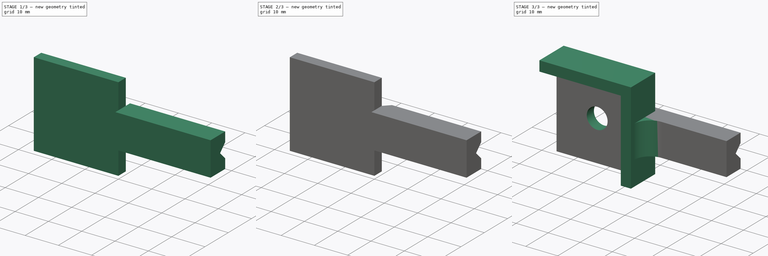
[diagram: build sequence overview — one tinted view per stage of 3, left to right]
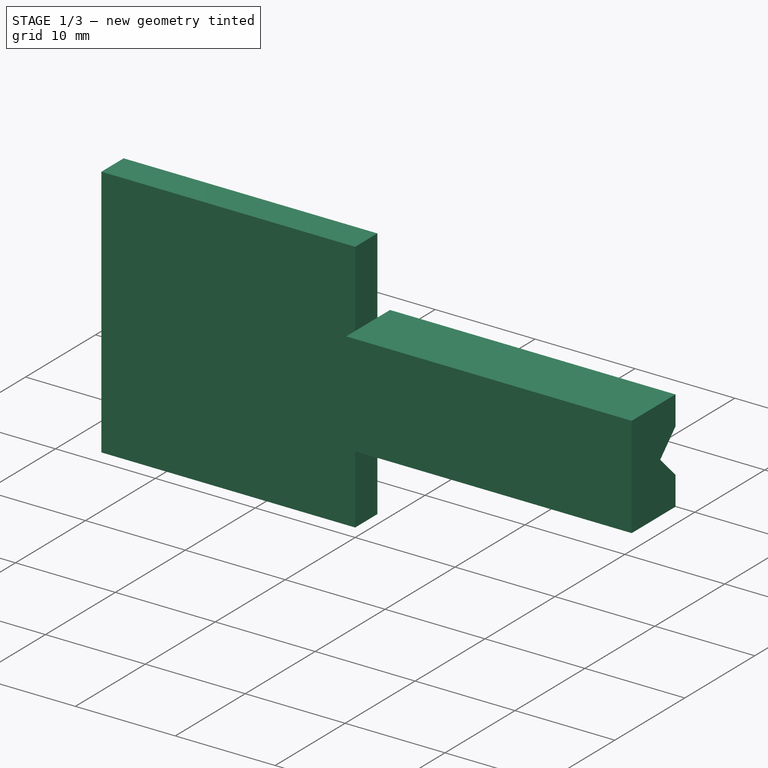
[diagram: stage 1 of 3 — iso view after this stage's code; geometry added in this stage tinted green]
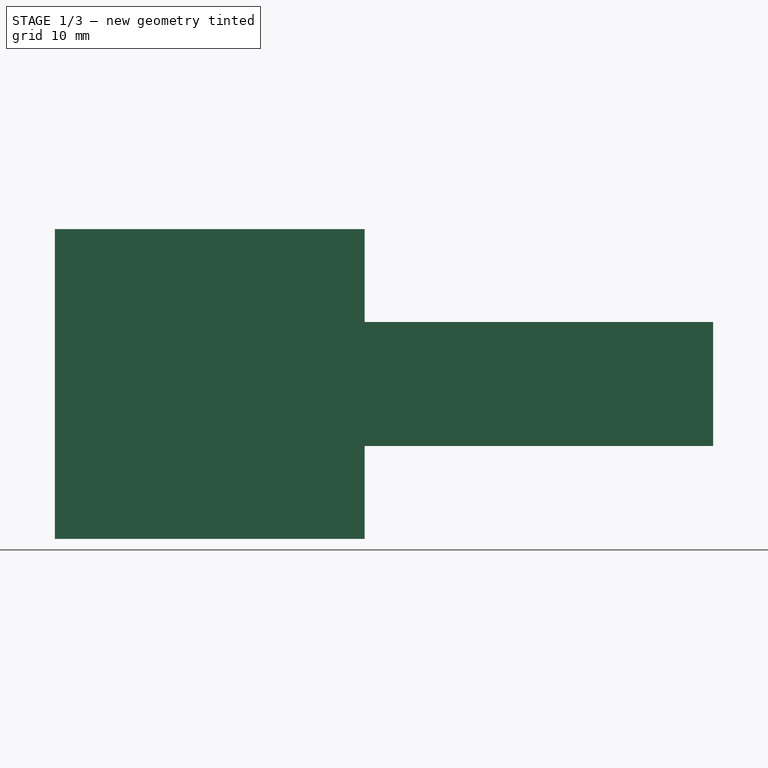
[diagram: stage 1 of 3 — front view after this stage's code; geometry added in this stage tinted green]
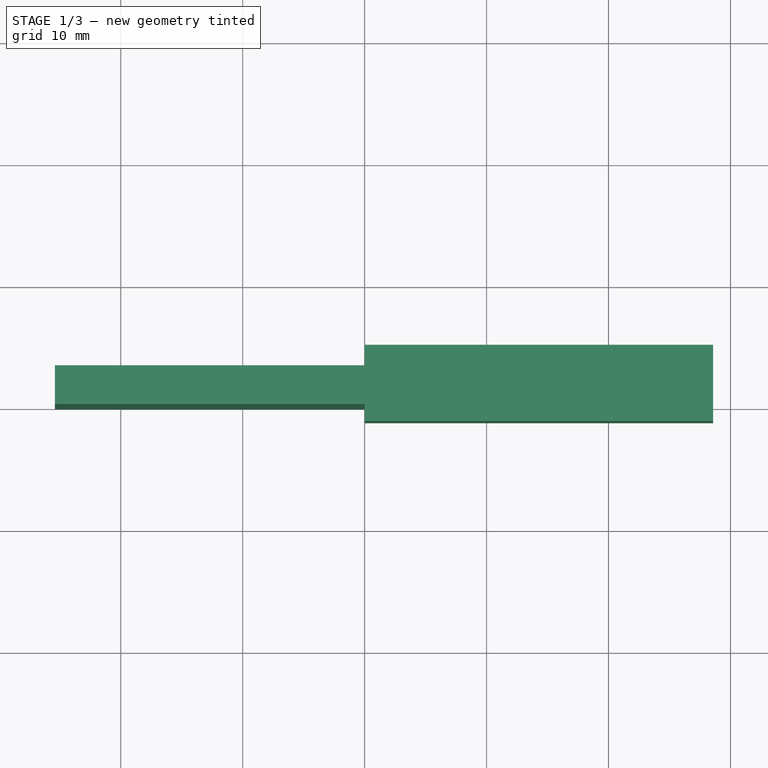
[diagram: stage 1 of 3 — top view after this stage's code; geometry added in this stage tinted green]
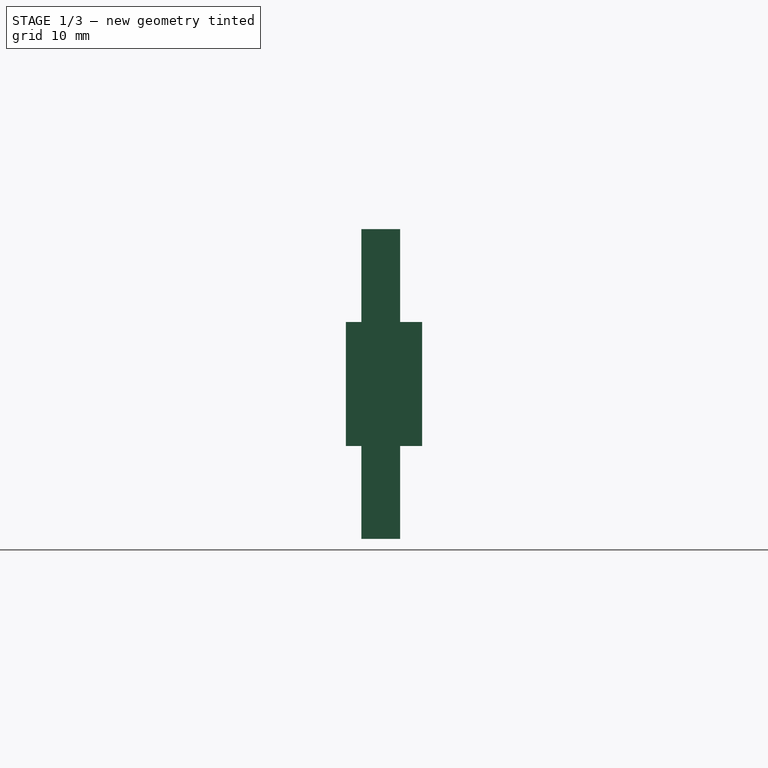
[diagram: stage 1 of 3 — right view after this stage's code; geometry added in this stage tinted green]
FCSTD DOCUMENT  (FreeCAD 0.18R16110 (Git))
Label: Lick spout holder v5 updated
License: All rights reserved
LicenseURL: http://en.wikipedia.org/wiki/All_rights_reserved
objects: Sketcher::SketchObject×6, PartDesign::Pad×3, PartDesign::Pocket×3, PartDesign::Chamfer×1, PartDesign::Fillet×1, PartDesign::Body×1
note: 21 computed .brp shape members not serialized (recipe doc carries the construction recipe); baked Part::Feature solids carry a one-line shape summary decoded from their .brp

FEATURE [Sketcher::SketchObject] Sketch  label="Mounting platform"
  MapMode = 5
  Support = -> [XY_Plane]
  sketch-geometry (4):
    g0: LineSegment StartX=-25.4 StartY=3.175 StartZ=0 EndX=0 EndY=3.175 EndZ=0
    g1: LineSegment StartX=0 StartY=3.175 StartZ=0 EndX=0 EndY=0 EndZ=0
    g2: LineSegment StartX=0 StartY=0 StartZ=0 EndX=-25.4 EndY=0 EndZ=0
    g3: LineSegment StartX=-25.4 StartY=0 StartZ=0 EndX=-25.4 EndY=3.175 EndZ=0
  constraints (11):
    c: Coincident(g0,g1)
    c: Coincident(g1,g2)
    c: Coincident(g2,g3)
    c: Coincident(g3,g0)
    c: Horizontal(g0)
    c: Horizontal(g2)
    c: Vertical(g1)
    c: Vertical(g3)
    c: DistanceX(g2,g2) = 25.4
    c: DistanceY(g1,g1) = 3.175
    c: Coincident(g-1,g1)
FEATURE [PartDesign::Pad] Pad
  Length = 25.4
  Length2 = 99.9998
  Profile = -> Sketch
  Type = 0
FEATURE [Sketcher::SketchObject] Sketch001  label="Spout support platform"
  MapMode = 5
  Placement = pos=(0,3.175,0) rot=(0,0.707107,0.707107;3.14159rad)
  Support = -> [Pad]
  expr: Constraints[11] = 1.5in - 0.375in
  expr: Constraints[8] = (1in - 0.4in) / 2
  sketch-geometry (4):
    g0: LineSegment StartX=-28.575 StartY=17.78 StartZ=0 EndX=0 EndY=17.78 EndZ=0
    g1: LineSegment StartX=0 StartY=17.78 StartZ=0 EndX=0 EndY=7.62 EndZ=0
    g2: LineSegment StartX=0 StartY=7.62 StartZ=0 EndX=-28.575 EndY=7.62 EndZ=0
    g3: LineSegment StartX=-28.575 StartY=7.62 StartZ=0 EndX=-28.575 EndY=17.78 EndZ=0
  constraints (12):
    c: Coincident(g0,g1)
    c: Coincident(g1,g2)
    c: Coincident(g2,g3)
    c: Coincident(g3,g0)
    c: Horizontal(g0)
    c: Horizontal(g2)
    c: Vertical(g1)
    c: Vertical(g3)
    c: DistanceY(g-1,g1) = 7.62
    c: DistanceY(g1,g1) = 10.16
    c: DistanceX(g1,g-1) = 0
    c: DistanceX(g2,g2) = 28.575
FEATURE [PartDesign::Pad] Pad001
  BaseFeature = -> Pad
  Length = 1.81
  Length2 = 4.445
  Profile = -> Sketch001
  Type = 4
  expr: Length = 1.81mm
FEATURE [Sketcher::SketchObject] Sketch002  label="Spout groove"
  MapMode = 5
  Placement = pos=(28.575,0,0) rot=(0.57735,0.57735,0.57735;2.0944rad)
  Support = -> [Pad001]
  expr: Constraints[7] = 0.125" + 1.81mm / 2
  expr: Constraints[3] = 1.81mm / 2
  sketch-geometry (4):
    g0: LineSegment StartX=9.15014 StartY=19.05 StartZ=0 EndX=2.80014 EndY=12.7 EndZ=0
    g1: LineSegment StartX=2.80014 StartY=12.7 StartZ=0 EndX=9.15014 EndY=6.35 EndZ=0
    g2: LineSegment StartX=9.15014 StartY=6.35 StartZ=0 EndX=9.15014 EndY=19.05 EndZ=0
    g3: Circle [constr] CenterX=4.08 CenterY=12.7 CenterZ=0 NormalX=0 NormalY=0 NormalZ=1 AngleXU=0 Radius=0.905
  constraints (12):
    c: Coincident(g0,g2)
    c: Coincident(g0,g1)
    c: Coincident(g1,g2)
    c: Radius(g3) = 0.905
    c: Tangent(g1,g3)
    c: Tangent(g3,g0)
    c: DistanceX(g1,g0) = 0
    c: DistanceX(g-1,g3) = 4.08
    c: DistanceY(g-1,g0) = 12.7
    c: Equal(g0,g1)
    c: Angle(g1,g0) = 1.5708
    c: DistanceX(g0,g1) = 6.35
FEATURE [PartDesign::Pocket] Pocket
  BaseFeature = -> Pad001
  Length = 9.525
  Length2 = 99.9998
  Profile = -> Sketch002
  Type = 0
  expr: Length = 3in / 8
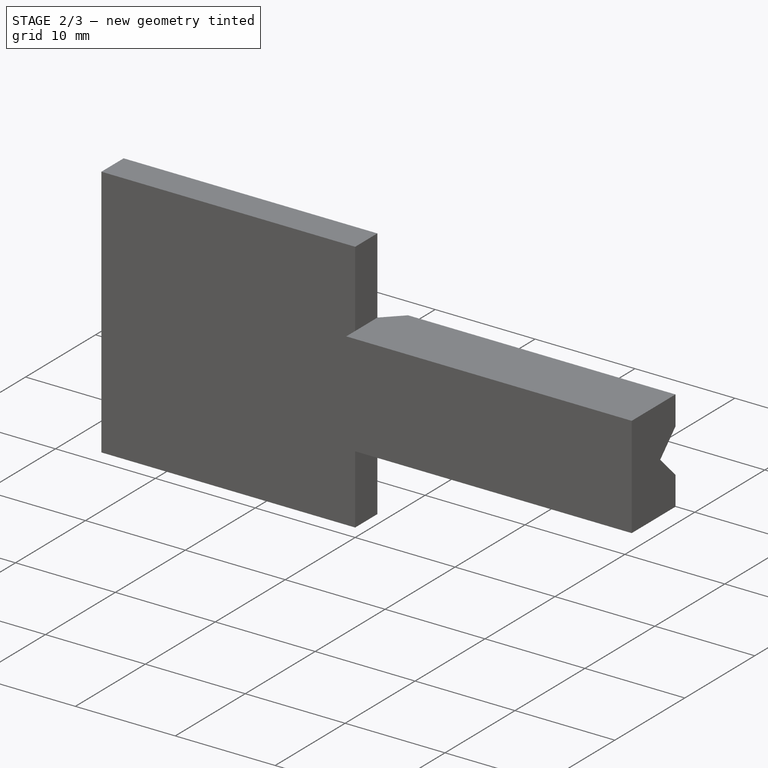
[diagram: stage 2 of 3 — iso view after this stage's code; geometry added in this stage tinted green]
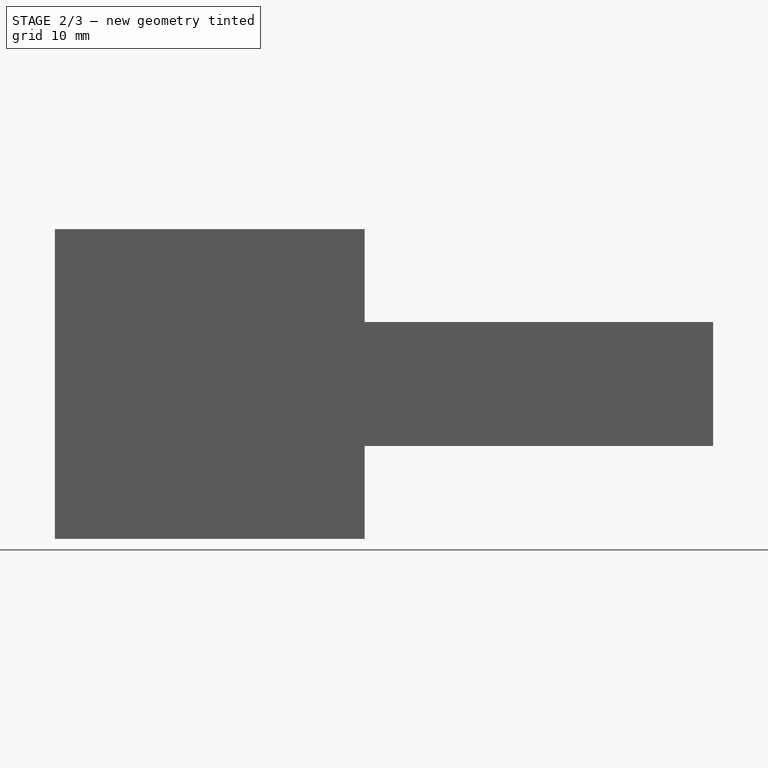
[diagram: stage 2 of 3 — front view after this stage's code; geometry added in this stage tinted green]
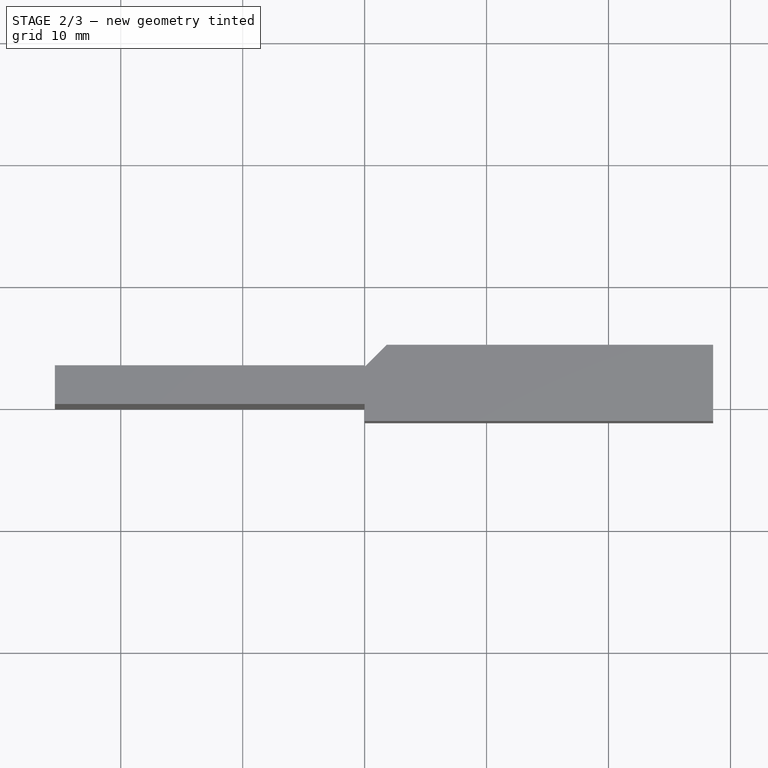
[diagram: stage 2 of 3 — top view after this stage's code; geometry added in this stage tinted green]
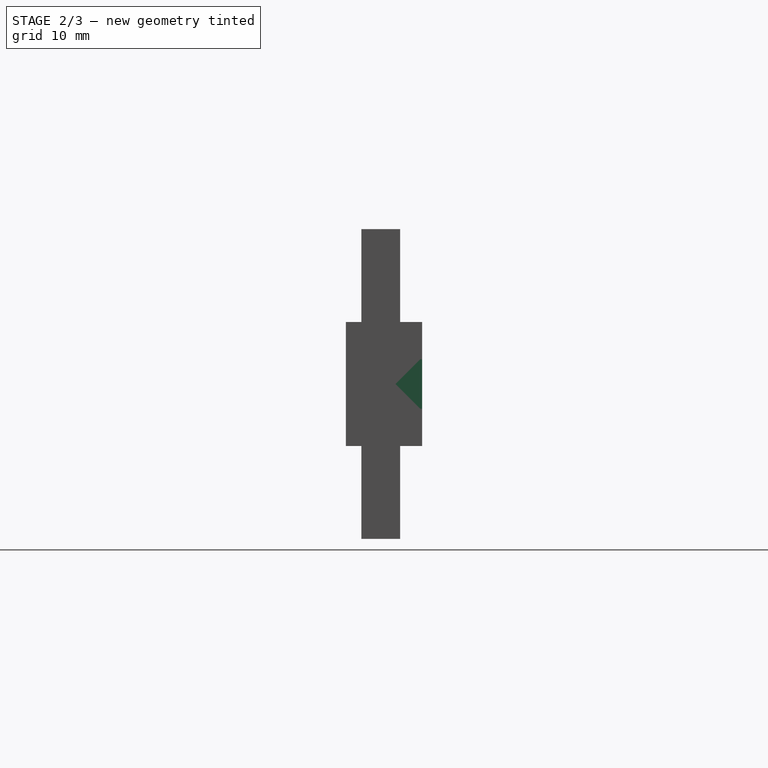
[diagram: stage 2 of 3 — right view after this stage's code; geometry added in this stage tinted green]
FEATURE [Sketcher::SketchObject] Sketch003  label="Tube groove"
  MapMode = 5
  Placement = pos=(19.05,0,0) rot=(0.57735,0.57735,0.57735;2.0944rad)
  Support = -> [Pocket]
  expr: Constraints[12] = 1.81mm / 2
  expr: Constraints[4] = 0.125" + 1.81mm / 2
  expr: Constraints[2] = 0.16" / 2
  sketch-geometry (4):
    g0: ArcOfCircle CenterX=4.08 CenterY=12.7 CenterZ=0 NormalX=0 NormalY=0 NormalZ=1 AngleXU=0 Radius=2.032 StartAngle=1.5708 EndAngle=4.71239
    g1: LineSegment StartX=4.08 StartY=14.732 StartZ=0 EndX=4.985 EndY=14.732 EndZ=0
    g2: LineSegment StartX=4.985 StartY=14.732 StartZ=0 EndX=4.985 EndY=10.668 EndZ=0
    g3: LineSegment StartX=4.985 StartY=10.668 StartZ=0 EndX=4.08 EndY=10.668 EndZ=0
  constraints (13):
    c: DistanceX(g0,g0) = 0
    c: DistanceX(g0,g0) = 0
    c: Radius(g0) = 2.032
    c: DistanceY(g-1,g0) = 12.7
    c: DistanceX(g-1,g0) = 4.08
    c: Coincident(g0,g1)
    c: Coincident(g1,g2)
    c: Coincident(g2,g3)
    c: Coincident(g0,g3)
    c: Horizontal(g3)
    c: Horizontal(g1)
    c: Vertical(g2)
    c: Distance(g1) = 0.905
FEATURE [PartDesign::Pocket] Pocket001
  BaseFeature = -> Pocket
  Length = 12.7
  Length2 = 99.9998
  Profile = -> Sketch003
  Type = 0
FEATURE [PartDesign::Chamfer] Chamfer
  Base = -> Pocket001 [Edge14]
  BaseFeature = -> Pocket001
  Size = 1.8034
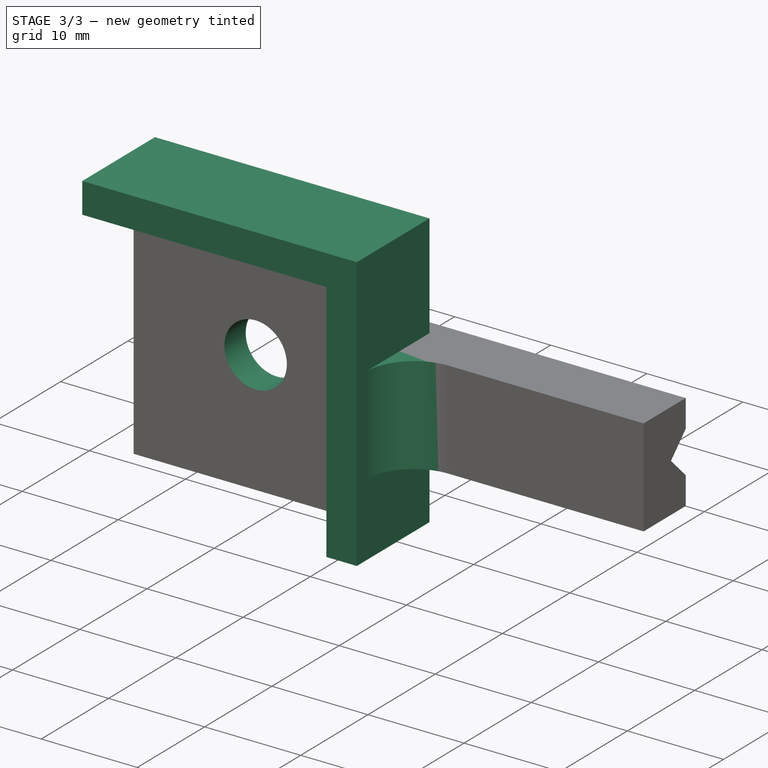
[diagram: stage 3 of 3 — iso view after this stage's code; geometry added in this stage tinted green]
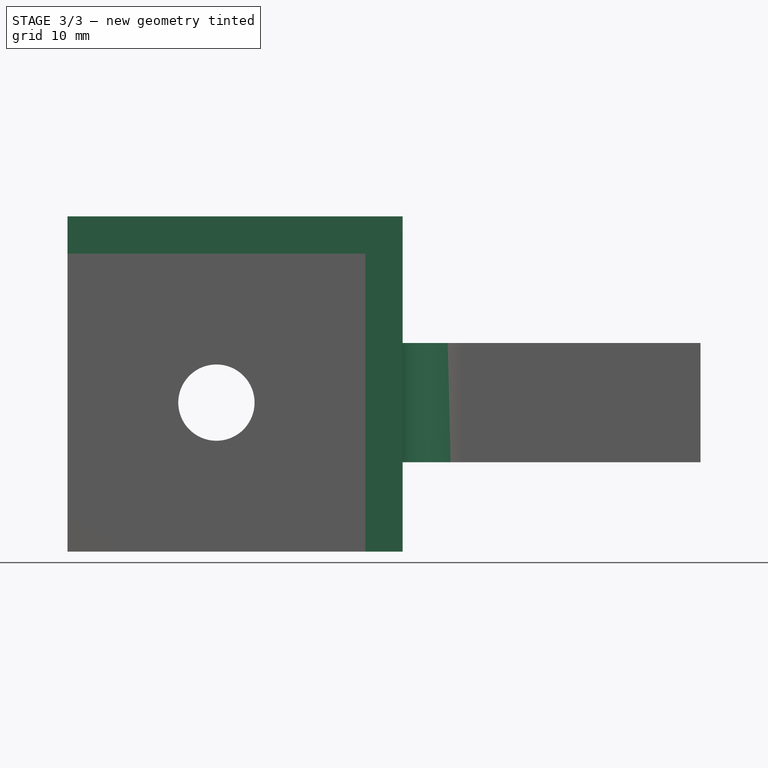
[diagram: stage 3 of 3 — front view after this stage's code; geometry added in this stage tinted green]
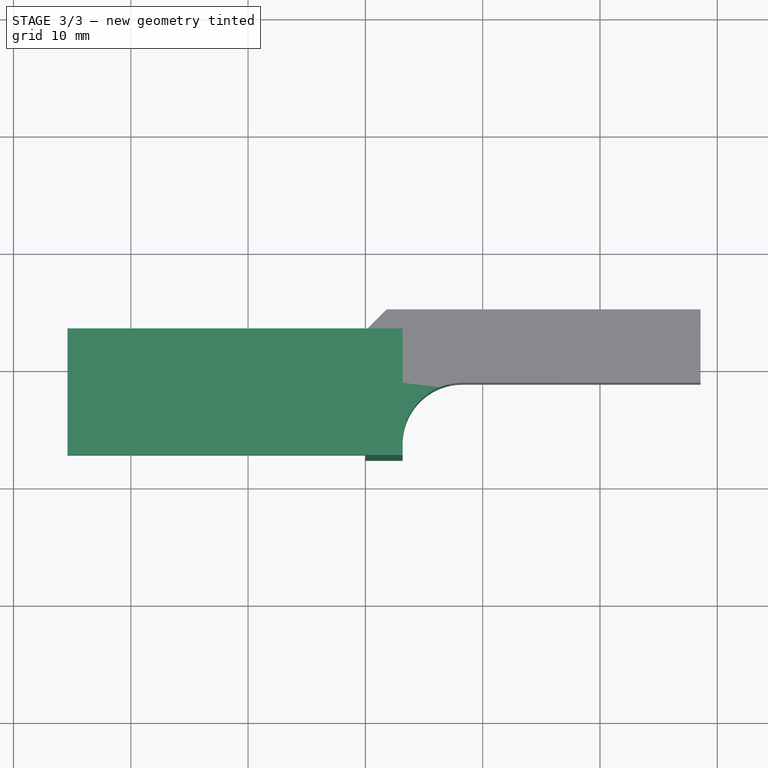
[diagram: stage 3 of 3 — top view after this stage's code; geometry added in this stage tinted green]
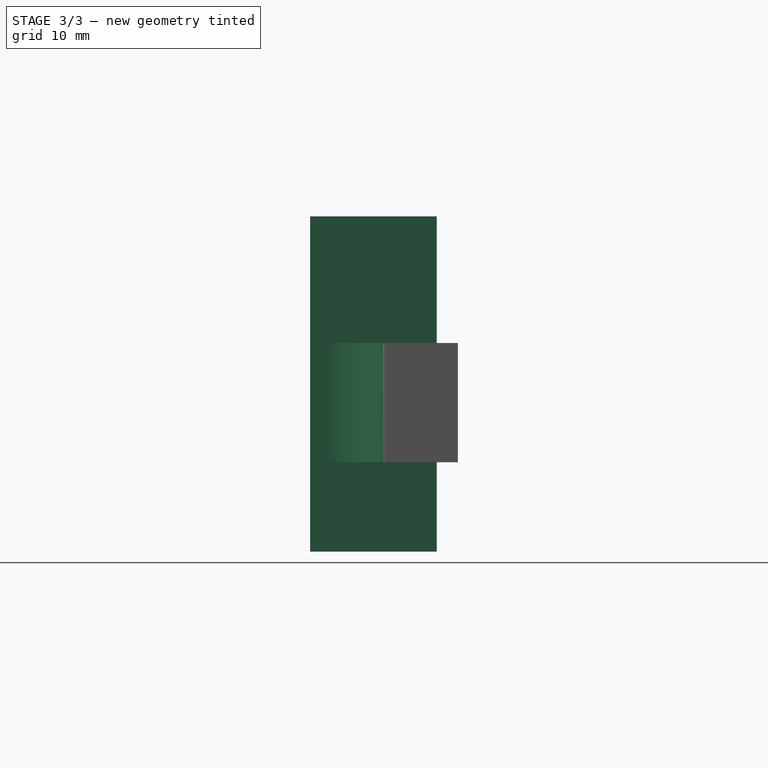
[diagram: stage 3 of 3 — right view after this stage's code; geometry added in this stage tinted green]
FEATURE [Sketcher::SketchObject] Sketch004  label="Mounting hole"
  MapMode = 5
  Placement = pos=(0,3.175,0) rot=(0,0.707107,0.707107;3.14159rad)
  Support = -> [Chamfer]
  expr: Constraints[2] = 0.25in / 2 + 0.003in
  sketch-geometry (1):
    g0: Circle CenterX=12.7 CenterY=12.7 CenterZ=0 NormalX=0 NormalY=0 NormalZ=1 AngleXU=0 Radius=3.2512
  constraints (3):
    c: DistanceX(g-1,g0) = 12.7
    c: DistanceY(g-1,g0) = 12.7
    c: Radius(g0) = 3.2512
FEATURE [PartDesign::Pocket] Pocket002
  BaseFeature = -> Chamfer
  Length = 5.00126
  Length2 = 99.9998
  Profile = -> Sketch004
  Type = 1
FEATURE [Sketcher::SketchObject] Sketch006  label="Orienting lip"
  MapMode = 5
  Placement = pos=(0,3.175,0) rot=(0,0.707107,0.707107;3.14159rad)
  Support = -> [Pocket002]
  sketch-geometry (6):
    g0: LineSegment StartX=0 StartY=0 StartZ=0 EndX=-3.175 EndY=0 EndZ=0
    g1: LineSegment StartX=-3.175 StartY=0 StartZ=0 EndX=-3.175 EndY=28.575 EndZ=0
    g2: LineSegment StartX=-3.175 StartY=28.575 StartZ=0 EndX=25.4 EndY=28.575 EndZ=0
    g3: LineSegment StartX=25.4 StartY=28.575 StartZ=0 EndX=25.4 EndY=25.4 EndZ=0
    g4: LineSegment StartX=25.4 StartY=25.4 StartZ=0 EndX=0 EndY=25.4 EndZ=0
    g5: LineSegment StartX=0 StartY=25.4 StartZ=0 EndX=0 EndY=0 EndZ=0
  constraints (17):
    c: Coincident(g0,g1)
    c: Coincident(g1,g2)
    c: Coincident(g2,g3)
    c: Coincident(g3,g4)
    c: Coincident(g4,g5)
    c: Coincident(g0,g5)
    c: Coincident(g0,g-1)
    c: Horizontal(g0)
    c: Horizontal(g4)
    c: Horizontal(g2)
    c: Vertical(g1)
    c: Vertical(g5)
    c: Vertical(g3)
    c: DistanceY(g4) = 25.4
    c: DistanceX(g3) = 25.4
    c: DistanceX(g1,g4) = 3.175
    c: DistanceY(g4,g1) = 3.175
FEATURE [PartDesign::Pad] Pad002
  BaseFeature = -> Pocket002
  Length = 10.795
  Length2 = 99.9998
  Profile = -> Sketch006
  Reversed = true
  Type = 0
FEATURE [PartDesign::Fillet] Fillet
  Base = -> Pad002 [Edge26]
  BaseFeature = -> Pad002
  Radius = 5.08
FEATURE [PartDesign::Body] Body
  Group = -> [Sketch,Pad,Sketch001,Pad001,Sketch002,Sketch003,Sketch004,Pocket,Pocket001,Chamfer,Pocket002,Sketch006,Pad002,Fillet]
  Origin = -> Origin
  Tip = -> Fillet
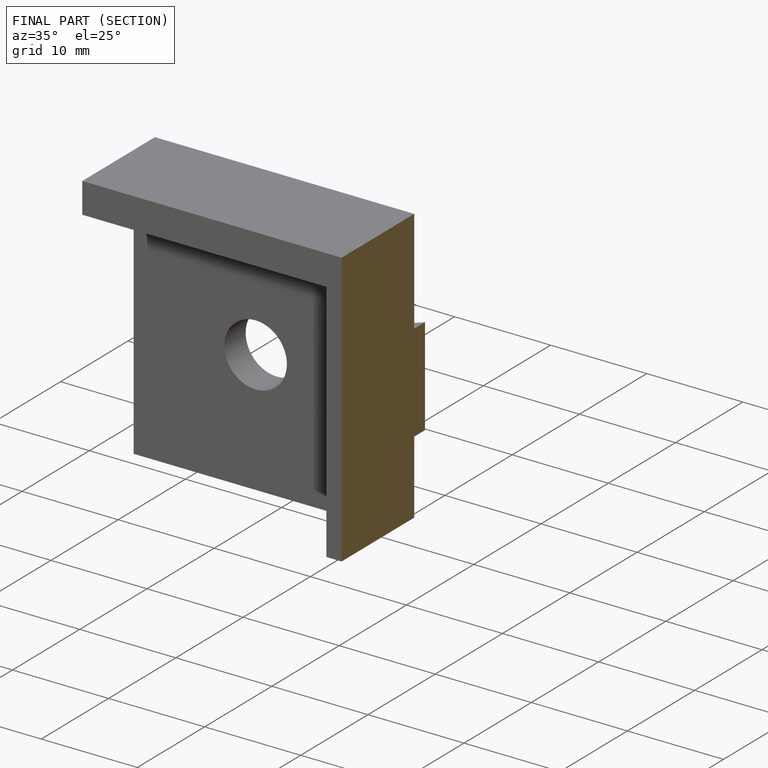
[diagram: finished part — half-section view (interior)]
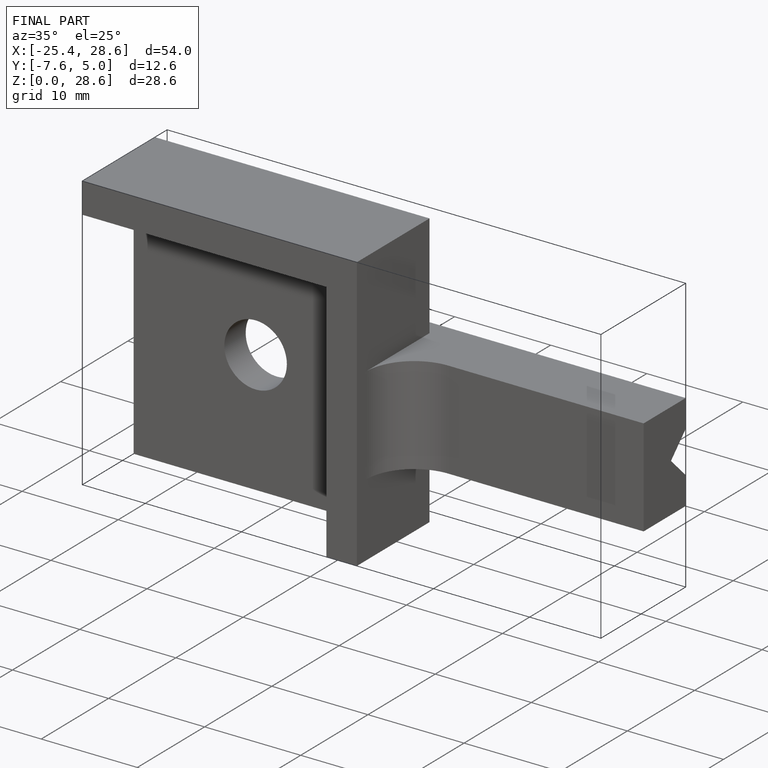
[diagram: finished part — iso view with bounding-box wireframe]
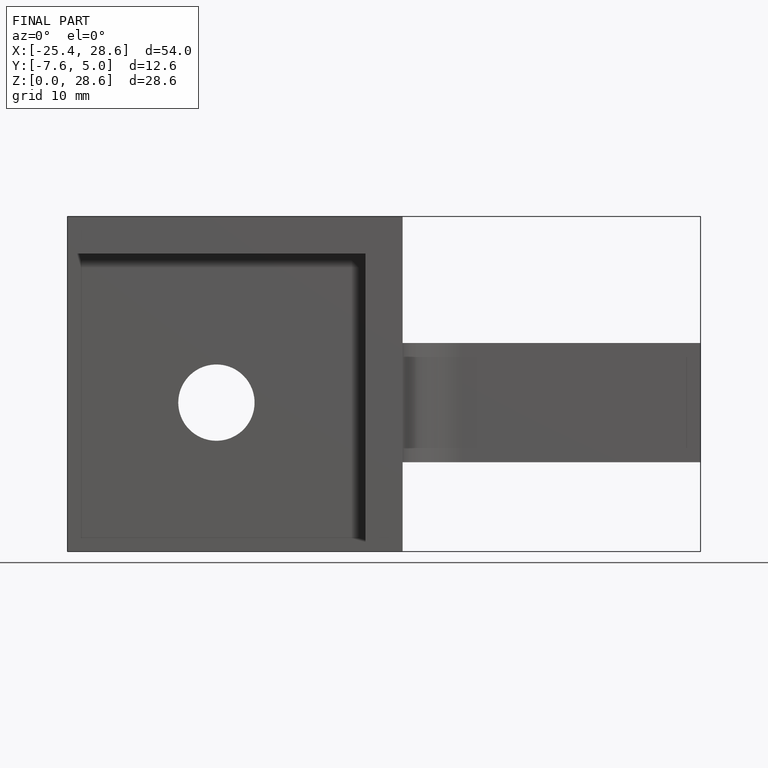
[diagram: finished part — front view with bounding-box wireframe]
